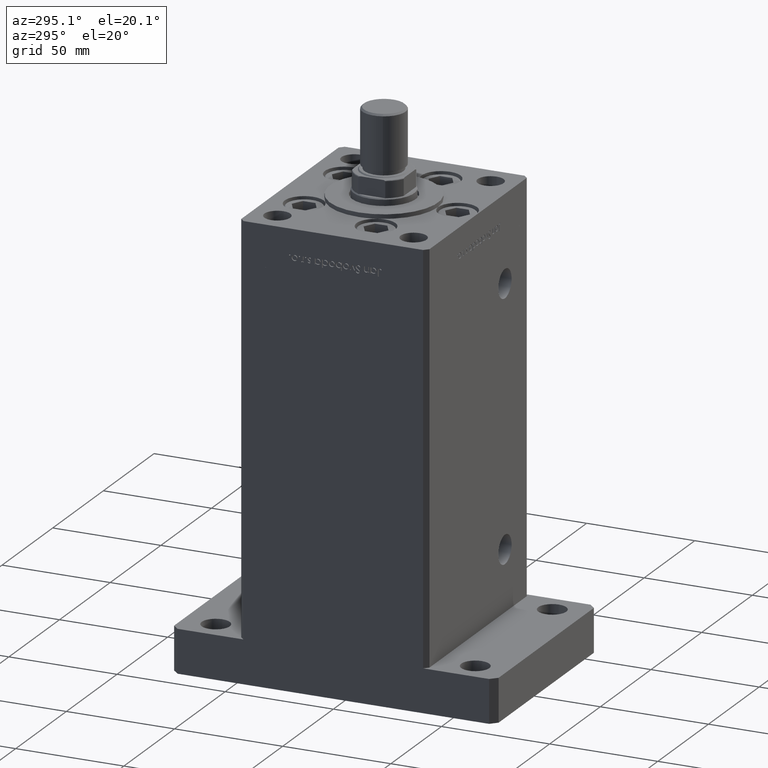
[diagram: clean part render]
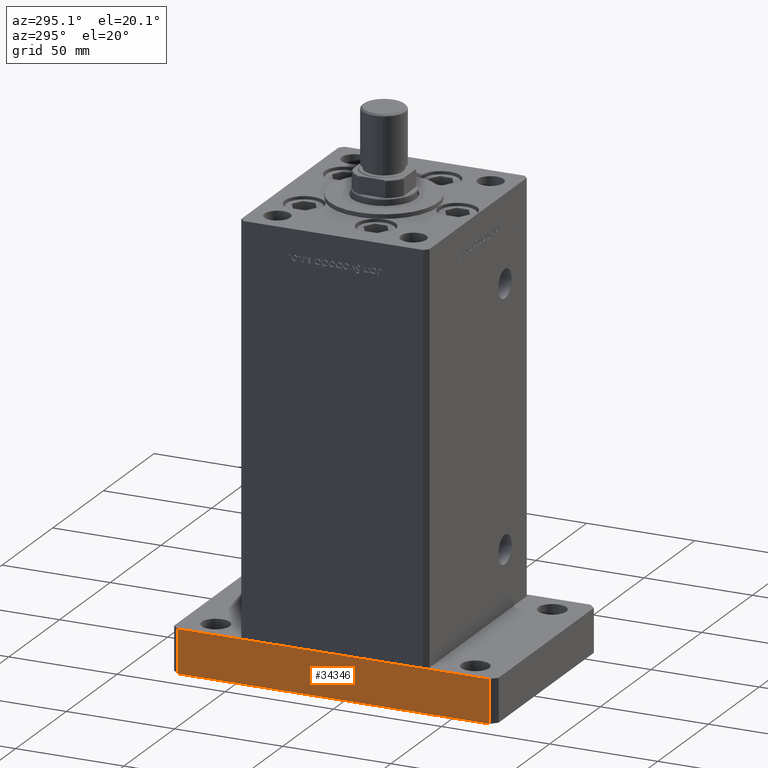
[diagram: same view with one face highlighted and labeled with its STEP entity id]
A machine part, auxiliary view. The second image highlights one B-rep face of the part: STEP entity #34346.
In plain terms, the highlighted planar face has unit normal (1, 0, 0).
Its self-contained STEP definition (entity closure, byte-faithful):
#25 = DIRECTION ( 'NONE',  ( -1.927470528863118802E-16, 1.000000000000000000, 0.000000000000000000 ) ) ;
#466 = DIRECTION ( 'NONE',  ( -0.000000000000000000, -0.000000000000000000, -1.000000000000000000 ) ) ;
#1001 = CARTESIAN_POINT ( 'NONE',  ( -50.00000000000001421, 72.00000000000000000, 20.00000000000000000 ) ) ;
#1394 = EDGE_CURVE ( 'NONE', #13383, #9401, #14143, .T. ) ;
#1541 = DIRECTION ( 'NONE',  ( 1.927470528863118802E-16, -1.000000000000000000, 0.000000000000000000 ) ) ;
#2181 = CARTESIAN_POINT ( 'NONE',  ( -49.99999999999998579, -72.00000000000001421, 20.00000000000000000 ) ) ;
#2274 = ORIENTED_EDGE ( 'NONE', *, *, #16733, .F. ) ;
#3795 = EDGE_LOOP ( 'NONE', ( #45787, #2274, #15955, #29478 ) ) ;
#5797 = CARTESIAN_POINT ( 'NONE',  ( -50.00000000000001421, 72.00000000000000000, 20.00000000000000000 ) ) ;
#6518 = VERTEX_POINT ( 'NONE', #11493 ) ;
#7356 = EDGE_CURVE ( 'NONE', #38331, #6518, #36411, .T. ) ;
#9401 = VERTEX_POINT ( 'NONE', #33595 ) ;
#10128 = DIRECTION ( 'NONE',  ( -0.000000000000000000, -0.000000000000000000, -1.000000000000000000 ) ) ;
#11287 = AXIS2_PLACEMENT_3D ( 'NONE', #49857, #24406, #25 ) ;
#11493 = CARTESIAN_POINT ( 'NONE',  ( -49.99999999999998579, -72.00000000000001421, 0.000000000000000000 ) ) ;
#13383 = VERTEX_POINT ( 'NONE', #5797 ) ;
#14143 = LINE ( 'NONE', #26467, #40235 ) ;
#15609 = DIRECTION ( 'NONE',  ( 1.927470528863118802E-16, -1.000000000000000000, 0.000000000000000000 ) ) ;
#15955 = ORIENTED_EDGE ( 'NONE', *, *, #1394, .F. ) ;
#16733 = EDGE_CURVE ( 'NONE', #9401, #6518, #43797, .T. ) ;
#19970 = VECTOR ( 'NONE', #466, 1000.000000000000000 ) ;
#20189 = EDGE_CURVE ( 'NONE', #13383, #38331, #51117, .T. ) ;
#24406 = DIRECTION ( 'NONE',  ( 1.000000000000000000, 1.927470528863118802E-16, -0.000000000000000000 ) ) ;
#26467 = CARTESIAN_POINT ( 'NONE',  ( -50.00000000000001421, 72.00000000000000000, 20.00000000000000000 ) ) ;
#27731 = CARTESIAN_POINT ( 'NONE',  ( -50.00000000000001421, 72.00000000000000000, 0.000000000000000000 ) ) ;
#29478 = ORIENTED_EDGE ( 'NONE', *, *, #20189, .T. ) ;
#33595 = CARTESIAN_POINT ( 'NONE',  ( -49.99999999999998579, -72.00000000000001421, 20.00000000000000000 ) ) ;
#33727 = PLANE ( 'NONE',  #11287 ) ;
#34346 = ADVANCED_FACE ( 'NONE', ( #45208 ), #33727, .F. ) ;
#36411 = LINE ( 'NONE', #53105, #53472 ) ;
#38331 = VERTEX_POINT ( 'NONE', #27731 ) ;
#40235 = VECTOR ( 'NONE', #1541, 1000.000000000000000 ) ;
#43797 = LINE ( 'NONE', #2181, #53363 ) ;
#45208 = FACE_OUTER_BOUND ( 'NONE', #3795, .T. ) ;
#45787 = ORIENTED_EDGE ( 'NONE', *, *, #7356, .T. ) ;
#49857 = CARTESIAN_POINT ( 'NONE',  ( -50.00000000000001421, 72.00000000000000000, 20.00000000000000000 ) ) ;
#51117 = LINE ( 'NONE', #1001, #19970 ) ;
#53105 = CARTESIAN_POINT ( 'NONE',  ( -50.00000000000001421, 72.00000000000000000, 0.000000000000000000 ) ) ;
#53363 = VECTOR ( 'NONE', #10128, 1000.000000000000000 ) ;
#53472 = VECTOR ( 'NONE', #15609, 1000.000000000000000 ) ;